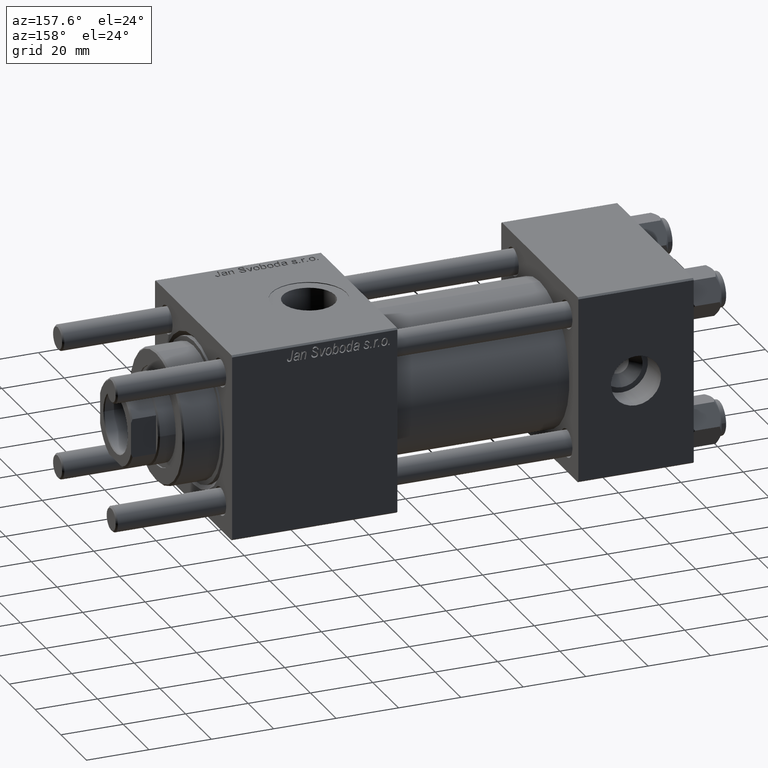
[diagram: clean part render]
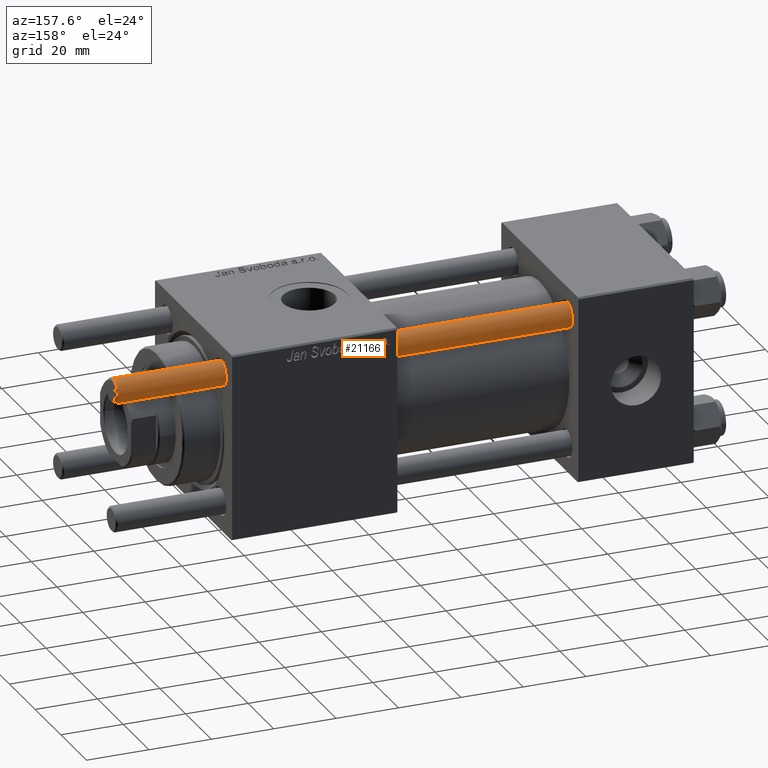
[diagram: same view with one face highlighted and labeled with its STEP entity id]
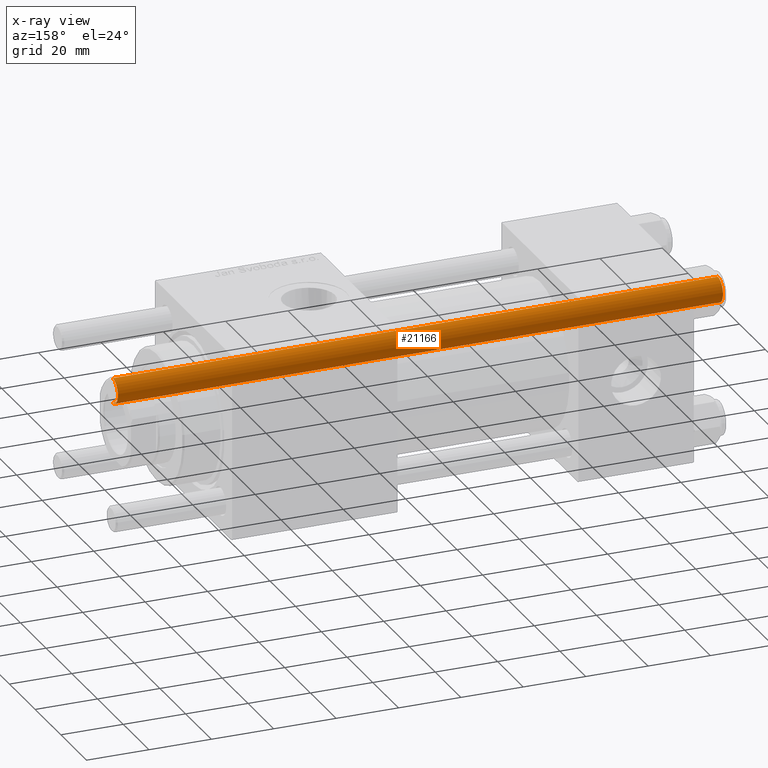
[diagram: x-ray of the same camera — body ghosted, the highlighted face saturated]
A machine part, auxiliary view. The second image highlights one B-rep face of the part: STEP entity #21166.
The next image is the same camera in x-ray: the body ghosted, the highlighted face saturated — about 0% of this face is hidden behind the body in this view.
In plain terms, the highlighted cylindrical surface (edge-blend (fillet) strip) has radius 4 mm, axis along (1, -0, -0).
Its self-contained STEP definition (entity closure, byte-faithful):
#1429 = ORIENTED_EDGE ( 'NONE', *, *, #46233, .T. ) ;
#1875 = CARTESIAN_POINT ( 'NONE',  ( 4.000000000000000000, 4.898587196589412829E-16, 195.0000000000000000 ) ) ;
#4330 = AXIS2_PLACEMENT_3D ( 'NONE', #16845, #43661, #25785 ) ;
#4343 = CARTESIAN_POINT ( 'NONE',  ( -4.000000000000000000, 0.000000000000000000, 194.5000000000000568 ) ) ;
#8615 = EDGE_LOOP ( 'NONE', ( #50789, #28584, #1429, #30703 ) ) ;
#9403 = DIRECTION ( 'NONE',  ( -1.000000000000000000, 0.000000000000000000, 0.000000000000000000 ) ) ;
#10434 = VERTEX_POINT ( 'NONE', #11452 ) ;
#10528 = VERTEX_POINT ( 'NONE', #17364 ) ;
#11452 = CARTESIAN_POINT ( 'NONE',  ( 4.000000000000000000, 4.898587196589412829E-16, 194.5000000000000568 ) ) ;
#11965 = DIRECTION ( 'NONE',  ( -0.000000000000000000, -0.000000000000000000, -1.000000000000000000 ) ) ;
#12449 = AXIS2_PLACEMENT_3D ( 'NONE', #41015, #18389, #48788 ) ;
#12986 = CARTESIAN_POINT ( 'NONE',  ( 0.000000000000000000, 0.000000000000000000, 195.0000000000000000 ) ) ;
#16845 = CARTESIAN_POINT ( 'NONE',  ( 0.000000000000000000, 0.000000000000000000, 0.5000000000000004441 ) ) ;
#17364 = CARTESIAN_POINT ( 'NONE',  ( -4.000000000000000000, 0.000000000000000000, 0.5000000000000004441 ) ) ;
#18389 = DIRECTION ( 'NONE',  ( 0.000000000000000000, 0.000000000000000000, -1.000000000000000000 ) ) ;
#18433 = VECTOR ( 'NONE', #57064, 1000.000000000000000 ) ;
#20731 = LINE ( 'NONE', #25191, #18433 ) ;
#21166 = ADVANCED_FACE ( 'NONE', ( #45439 ), #41251, .T. ) ;
#21177 = VERTEX_POINT ( 'NONE', #4343 ) ;
#22210 = DIRECTION ( 'NONE',  ( -0.000000000000000000, -0.000000000000000000, -1.000000000000000000 ) ) ;
#24774 = LINE ( 'NONE', #1875, #50384 ) ;
#25191 = CARTESIAN_POINT ( 'NONE',  ( -4.000000000000000000, 0.000000000000000000, 195.0000000000000000 ) ) ;
#25785 = DIRECTION ( 'NONE',  ( 1.000000000000000000, 0.000000000000000000, 0.000000000000000000 ) ) ;
#27299 = EDGE_CURVE ( 'NONE', #10434, #39129, #24774, .T. ) ;
#28584 = ORIENTED_EDGE ( 'NONE', *, *, #27299, .T. ) ;
#29383 = AXIS2_PLACEMENT_3D ( 'NONE', #12986, #22210, #9403 ) ;
#29538 = CIRCLE ( 'NONE', #12449, 4.000000000000000000 ) ;
#30453 = EDGE_CURVE ( 'NONE', #21177, #10434, #29538, .T. ) ;
#30703 = ORIENTED_EDGE ( 'NONE', *, *, #44556, .F. ) ;
#31567 = CARTESIAN_POINT ( 'NONE',  ( 4.000000000000000000, 4.898587196589412829E-16, 0.5000000000000004441 ) ) ;
#39129 = VERTEX_POINT ( 'NONE', #31567 ) ;
#41015 = CARTESIAN_POINT ( 'NONE',  ( 0.000000000000000000, 0.000000000000000000, 194.5000000000000568 ) ) ;
#41251 = CYLINDRICAL_SURFACE ( 'NONE', #29383, 4.000000000000000000 ) ;
#43661 = DIRECTION ( 'NONE',  ( -0.000000000000000000, -0.000000000000000000, 1.000000000000000000 ) ) ;
#44556 = EDGE_CURVE ( 'NONE', #21177, #10528, #20731, .T. ) ;
#45439 = FACE_OUTER_BOUND ( 'NONE', #8615, .T. ) ;
#46233 = EDGE_CURVE ( 'NONE', #39129, #10528, #50777, .T. ) ;
#48788 = DIRECTION ( 'NONE',  ( 1.000000000000000000, 0.000000000000000000, 0.000000000000000000 ) ) ;
#50384 = VECTOR ( 'NONE', #11965, 1000.000000000000000 ) ;
#50777 = CIRCLE ( 'NONE', #4330, 4.000000000000000000 ) ;
#50789 = ORIENTED_EDGE ( 'NONE', *, *, #30453, .T. ) ;
#57064 = DIRECTION ( 'NONE',  ( -0.000000000000000000, -0.000000000000000000, -1.000000000000000000 ) ) ;